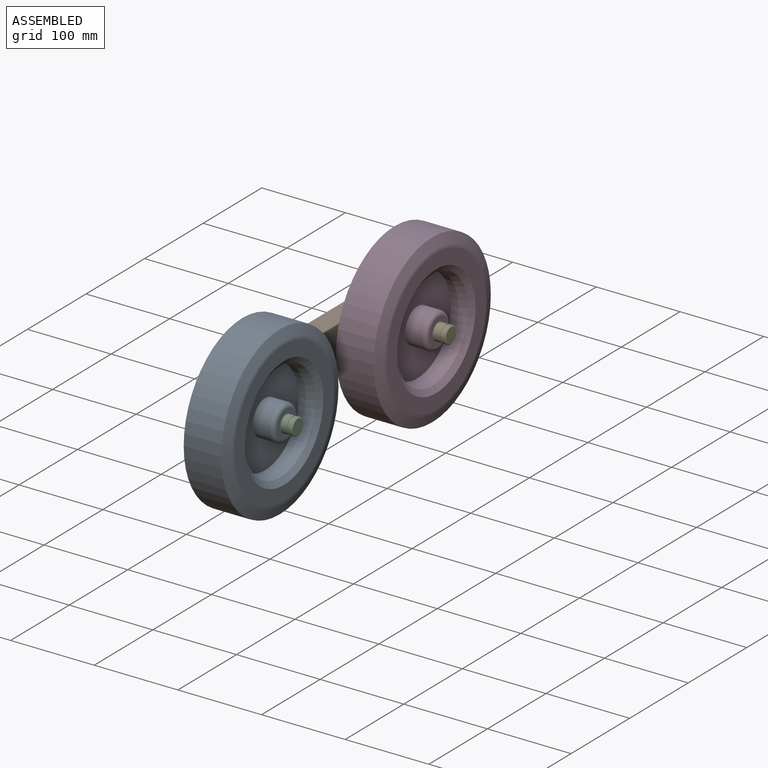
[diagram: assembled view]
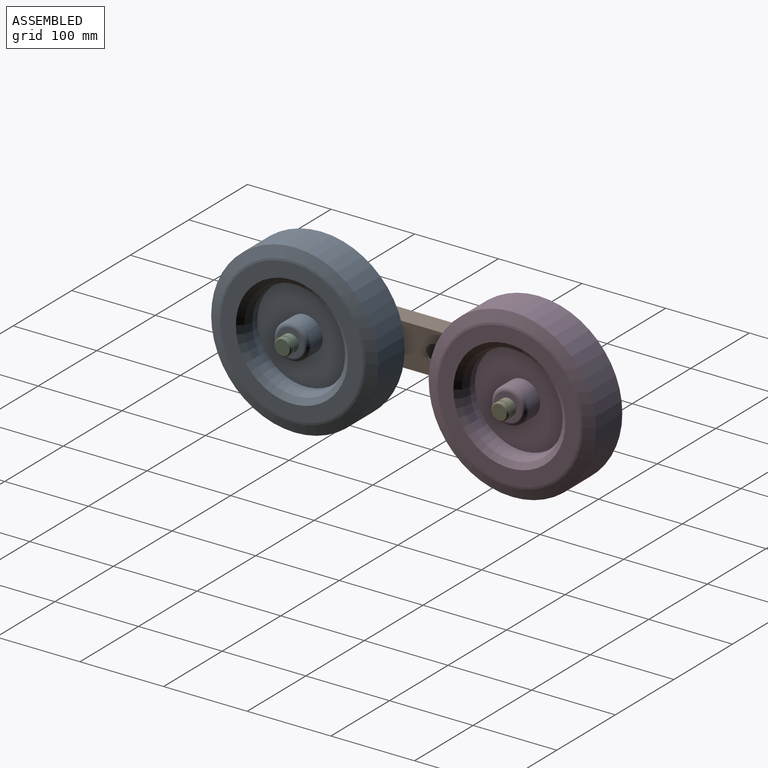
[diagram: assembled view, second angle]
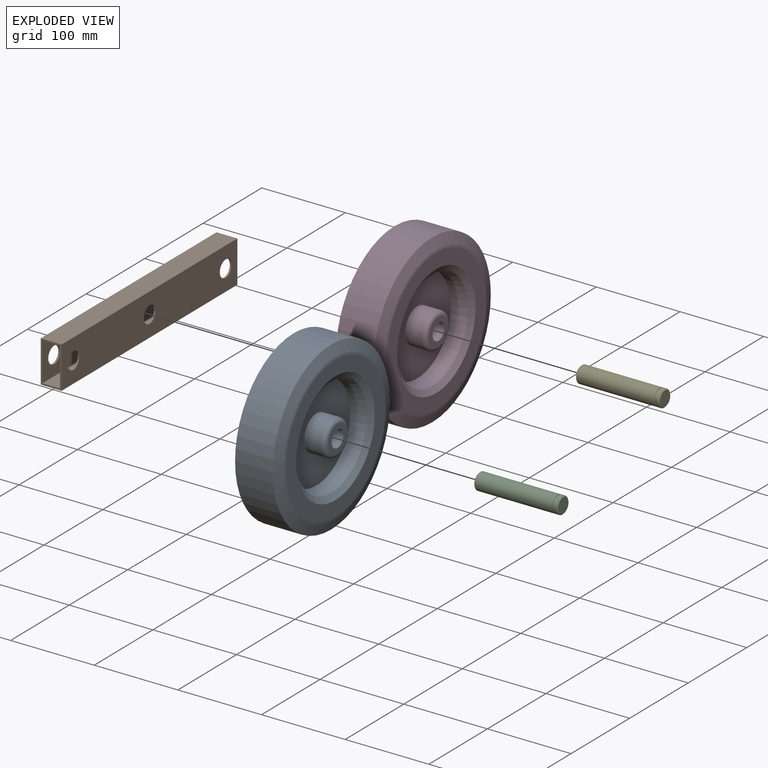
[diagram: exploded view]
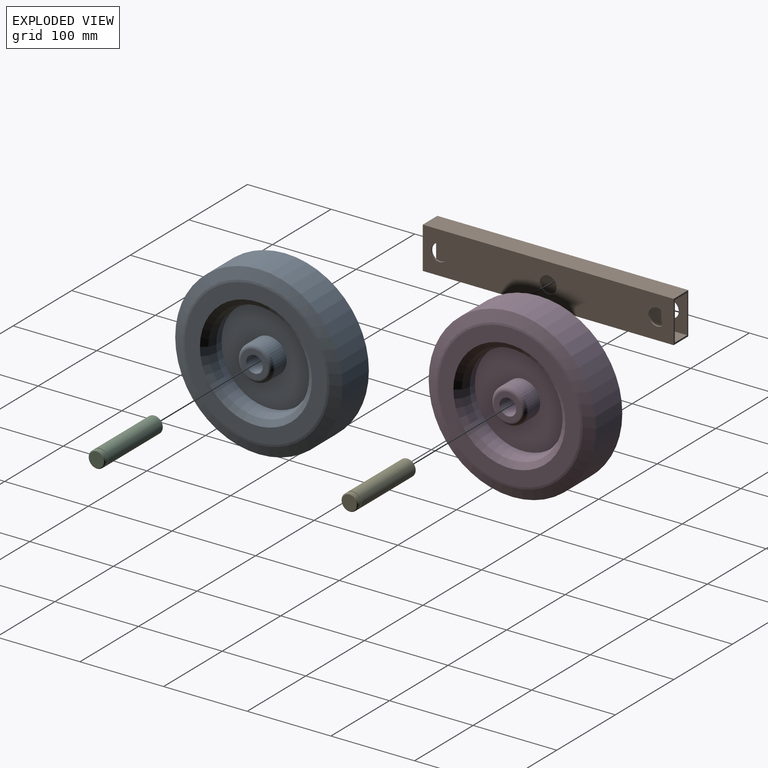
[diagram: exploded view, second angle]
ASSEMBLY  parts=5 mates=4
PART A: 22 faces, bbox 200x60x200 mm
  f0: plane 170.01x170.01mm, normal (0,1,0), area 8597.3mm2, adj f13,f14
  f1: cylinder r=100mm len=200mm, axis (0,-1,0), area 28274.3mm2, adj f7,f9
  f2: plane 170.01x170.01mm, normal (0,-1,0), area 6415.5mm2, adj f11,f12
  f3: cylinder r=57mm len=114mm, axis (0,-1,0), area 6267.5mm2, adj f4,f10
  f4: plane 114x114mm, normal (0,-1,0), area 8821.6mm2, adj f3,f17
  f5: plane 114x114mm, normal (0,1,0), area 8821.6mm2, adj f6,f16
  f6: cylinder r=57mm len=114mm, axis (0,-1,0), area 3138.3mm2, adj f5,f8
  f7: cone r=100mm half-angle=70deg, axis (0,-1,0), area 7867.4mm2, adj f1,f13
  f8: cone r=62mm half-angle=20deg, axis (0,1,0), area 3544.4mm2, adj f6,f14
  f9: cone r=86.26mm half-angle=70deg, axis (0,1,0), area 7867.4mm2, adj f1,f11
  f10: cone r=57mm half-angle=70deg, axis (0,-1,0), area 5311.7mm2, adj f3,f12
  f11: cone r=85mm half-angle=80deg, axis (0,1,0), area 1343.6mm2, adj f2,f9
  f12: cone r=72mm half-angle=80deg, axis (0,-1,0), area 1102.8mm2, adj f2,f10
  f13: cone r=85mm half-angle=80deg, axis (0,-1,0), area 1343.6mm2, adj f0,f7
  f14: cone r=67mm half-angle=55deg, axis (0,1,0), area 3275.7mm2, adj f0,f8
  f15: plane 32x32mm, normal (0,1,0), area 490.1mm2, adj f19,f21
  f16: cylinder r=21mm len=42mm, axis (0,1,0), area 2638.9mm2, adj f5,f19
  f17: cylinder r=21mm len=42mm, axis (0,1,0), area 2638.9mm2, adj f4,f20
  f18: plane 32x32mm, normal (0,-1,0), area 490.1mm2, adj f20,f21
  f19: torus R=16mm, axis (0,-1,0), area 946.6mm2, adj f15,f16
  f20: torus R=16mm, axis (0,-1,0), area 946.6mm2, adj f17,f18
  f21: cylinder r=10mm len=60mm, axis (0,-1,0), area 3769.9mm2, adj f15,f18
PART B: 16 faces, bbox 25x300x50 mm
  f0: plane 300x21mm, normal (0,0,-1), area 6300mm2, adj f1,f7,f8,f9
  f1: plane 300x46mm, normal (-1,0,0), area 12857.5mm2, adj f0,f2,f8,f9,f13,f14,f15
  f2: plane 300x21mm, normal (0,0,1), area 6300mm2, adj f1,f7,f8,f9
  f3: plane 300x50mm, normal (1,0,0), area 14057.5mm2, adj f4,f6,f8,f9,f13,f14,f15
  f4: plane 300x25mm, normal (0,0,1), area 7500mm2, adj f3,f5,f8,f9
  f5: plane 300x50mm, normal (-1,0,0), area 14057.5mm2, adj f4,f6,f8,f9,f10,f11,f12
  f6: plane 300x25mm, normal (0,0,-1), area 7500mm2, adj f3,f5,f8,f9
  f7: plane 300x46mm, normal (1,0,0), area 12857.5mm2, adj f0,f2,f8,f9,f10,f11,f12
  f8: plane 50x25mm, normal (0,-1,0), area 284mm2, adj f0,f1,f2,f3,f4,f5,f6,f7
  f9: plane 50x25mm, normal (0,1,0), area 284mm2, adj f0,f1,f2,f3,f4,f5,f6,f7
  f10: cylinder r=10mm len=20mm, axis (-1,0,0), area 125.7mm2, adj f5,f7
  f11: cylinder r=10mm len=20mm, axis (-1,0,0), area 125.7mm2, adj f5,f7
  f12: cylinder r=10mm len=20mm, axis (-1,0,0), area 125.7mm2, adj f5,f7
  f13: cylinder r=10mm len=20mm, axis (-1,0,0), area 125.7mm2, adj f1,f3
  f14: cylinder r=10mm len=20mm, axis (-1,0,0), area 125.7mm2, adj f1,f3
  f15: cylinder r=10mm len=20mm, axis (-1,0,0), area 125.7mm2, adj f1,f3
PART C: 9 faces, bbox 20x100x20 mm
  f0: cylinder r=10mm len=92.8mm, axis (0,1,0), area 5830.8mm2, adj f2,f3
  f1: plane 18x18mm, normal (0,-1,0), area 254.5mm2, adj f2
  f2: cone r=9mm half-angle=45deg, axis (0,1,0), area 84.4mm2, adj f0,f1
  f3: plane 20x20mm, normal (0,1,0), area 30.6mm2, adj f0,f4
  f4: cylinder r=9.5mm len=19mm, axis (0,-1,0), area 71.6mm2, adj f3,f5
  f5: plane 20x20mm, normal (0,-1,0), area 30.6mm2, adj f4,f8
  f6: plane 18x18mm, normal (0,1,0), area 254.5mm2, adj f7
  f7: cone r=10mm half-angle=45deg, axis (0,-1,0), area 84.4mm2, adj f6,f8
  f8: cylinder r=10mm len=20mm, axis (0,1,0), area 251.3mm2, adj f5,f7
PART D: same geometry as A
PART E: same geometry as C
PLACE A rot(axis=(0.58,0.58,-0.58),120deg) t=(35.3,-122.72,17.15)mm
PLACE B t=(-7.2,7.28,17.15)mm
PLACE C rot(axis=(-0.58,-0.58,-0.58),120deg) t=(79.3,-122.72,17.15)mm
PLACE D rot(axis=(0.58,0.58,-0.58),120deg) t=(35.3,137.28,17.15)mm
PLACE E rot(axis=(-0.58,-0.58,-0.58),120deg) t=(80.3,137.28,17.15)mm
MATE revolute D.f16 <-> B.f11  axis (-1,0,0) through (5.3,137.28,17.15)mm
MATE revolute A.f16 <-> B.f12  axis (-1,0,0) through (5.3,-122.72,17.15)mm
MATE fastened C.f0 <-> B.f12  axis (1,0,0) through (-19.7,-122.72,17.15)mm
MATE fastened E.f0 <-> B.f11  axis (-1,0,0) through (-19.7,137.28,17.15)mm
